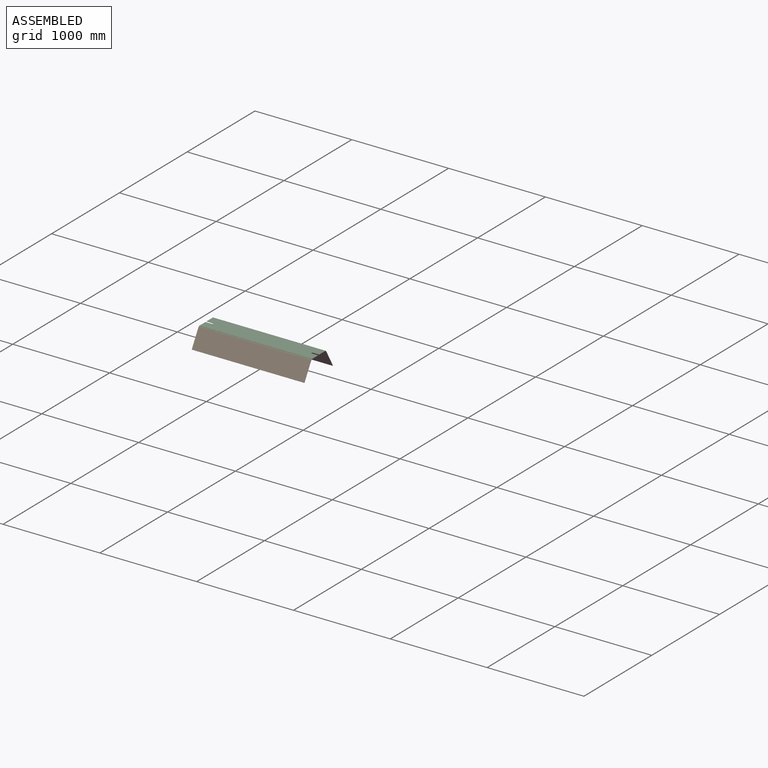
[diagram: assembled view]
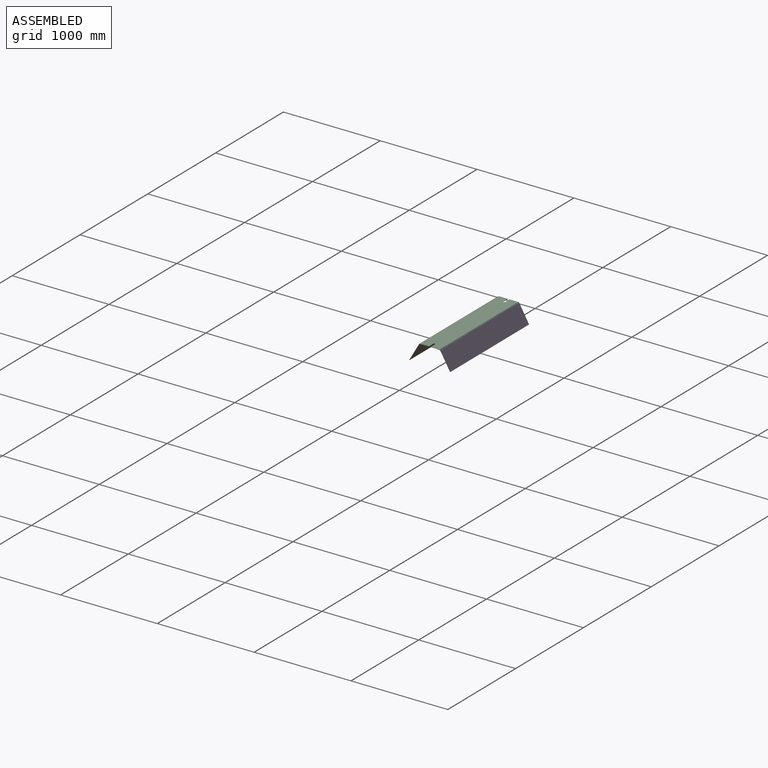
[diagram: assembled view, second angle]
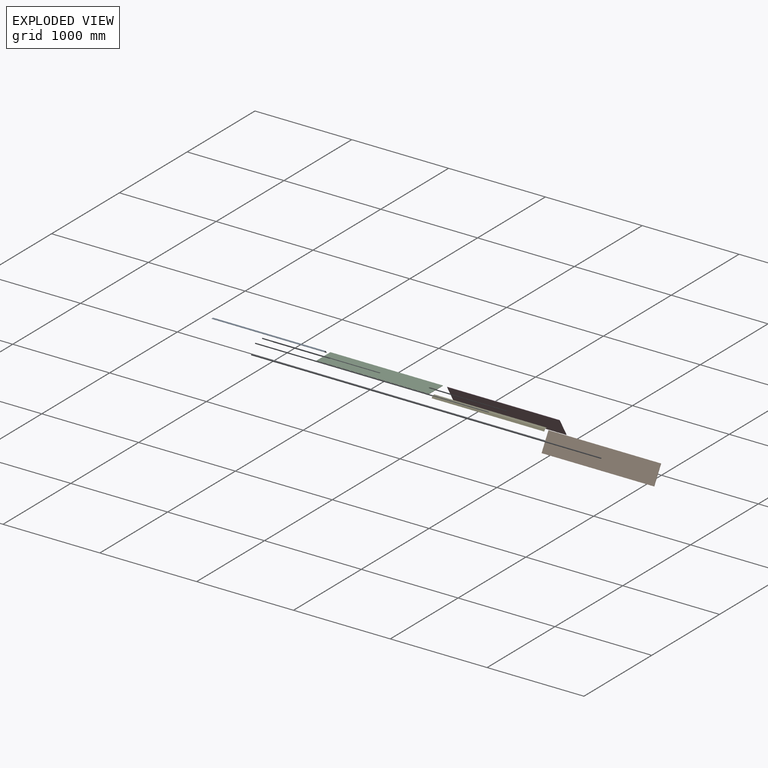
[diagram: exploded view]
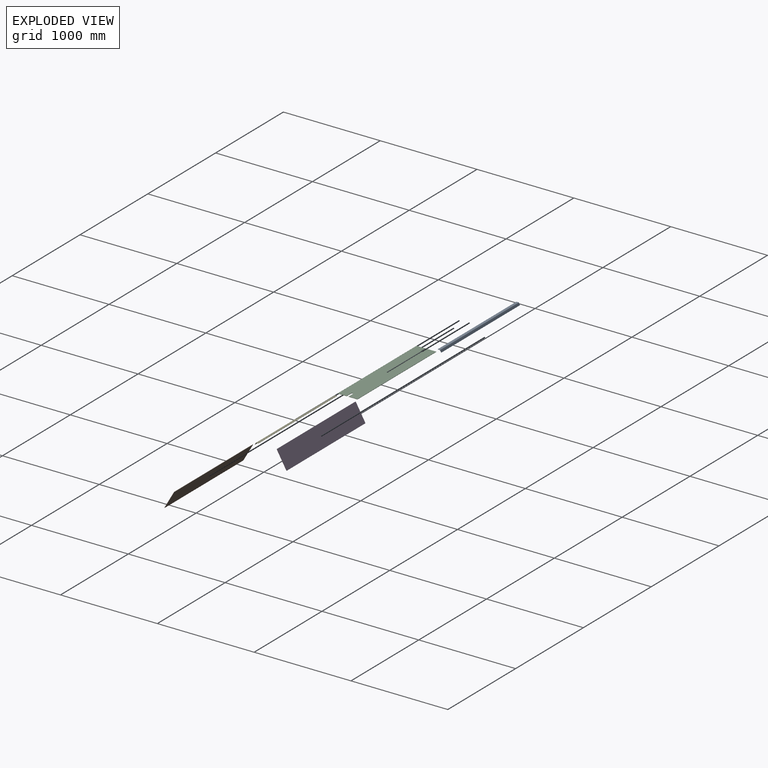
[diagram: exploded view, second angle]
ASSEMBLY  parts=5 mates=4
PART A: 10 faces, bbox 1162.1x38.1x22.8 mm
  f0: plane 1162.05x18.82mm, normal (0,0.87,0.5), area 25255.8mm2, adj f1,f7,f8,f9
  f1: cylinder r=6.35mm len=1162.05mm, axis (1,0,0), area 7727.3mm2, adj f0,f2,f8,f9
  f2: plane 1162.05x21.73mm, normal (0,0,1), area 25255.8mm2, adj f1,f3,f8,f9
  f3: plane 1162.05x1.59mm, normal (0,-1,0), area 1844.8mm2, adj f2,f4,f8,f9
  f4: plane 1162.05x21.73mm, normal (0,0,-1), area 25255.8mm2, adj f3,f5,f8,f9
  f5: cylinder r=4.76mm len=1162.05mm, axis (1,0,0), area 5795.5mm2, adj f4,f6,f8,f9
  f6: plane 1162.05x18.82mm, normal (0,-0.87,-0.5), area 25255.8mm2, adj f5,f7,f8,f9
  f7: plane 1162.05x1.38mm, normal (0,0.5,-0.87), area 1844.8mm2, adj f0,f6,f8,f9
  f8: plane 38.1x22.79mm, normal (-1,0,0), area 78.2mm2, adj f0,f1,f2,f3,f4,f5,f6,f7
  f9: plane 38.1x22.79mm, normal (1,0,0), area 78.2mm2, adj f0,f1,f2,f3,f4,f5,f6,f7
PART B: 6 faces, bbox 1162.1x104.2x177.5 mm
  f0: plane 1162.05x2.6mm, normal (0,-0.5,-0.87), area 3482.9mm2, adj f1,f3,f4,f5
  f1: plane 1162.05x175.98mm, normal (0,0.87,-0.5), area 236128.6mm2, adj f0,f2,f4,f5
  f2: plane 1162.05x2.6mm, normal (0,0.5,0.87), area 3482.9mm2, adj f1,f3,f4,f5
  f3: plane 1162.05x175.98mm, normal (0,-0.87,0.5), area 236128.6mm2, adj f0,f2,f4,f5
  f4: plane 177.48x104.2mm, normal (-1,0,0), area 609mm2, adj f0,f1,f2,f3
  f5: plane 177.48x104.2mm, normal (1,0,0), area 609mm2, adj f0,f1,f2,f3
PART C: 14 faces, bbox 1162.1x203.2x3 mm
  f0: plane 92.08x3mm, normal (-1,0,0), area 276mm2, adj f1,f3,f4,f13
  f1: plane 1162.05x203.2mm, normal (0,0,1), area 233424.2mm2, adj f0,f2,f4,f5,f6,f7,f8,f9
  f2: plane 92.08x3mm, normal (1,0,0), area 276mm2, adj f1,f3,f4,f10
  f3: plane 1162.05x203.2mm, normal (0,0,-1), area 233424.2mm2, adj f0,f2,f4,f5,f6,f7,f8,f9
  f4: plane 1162.05x3mm, normal (0,-1,0), area 3482.9mm2, adj f0,f1,f2,f3
  f5: plane 1162.05x3mm, normal (0,1,0), area 3482.9mm2, adj f1,f3,f6,f7
  f6: plane 92.08x3mm, normal (-1,0,0), area 276mm2, adj f1,f3,f5,f12
  f7: plane 92.08x3mm, normal (1,0,0), area 276mm2, adj f1,f3,f5,f8
  f8: plane 63.5x3mm, normal (0,-1,0), area 190.3mm2, adj f1,f3,f7,f9
  f9: cylinder r=9.53mm len=19.05mm, axis (0,0,1), area 89.7mm2, adj f1,f3,f8,f10
  f10: plane 63.5x3mm, normal (0,1,0), area 190.3mm2, adj f1,f2,f3,f9
  f11: cylinder r=9.53mm len=19.05mm, axis (0,0,1), area 89.7mm2, adj f1,f3,f12,f13
  f12: plane 63.5x3mm, normal (0,-1,0), area 190.3mm2, adj f1,f3,f6,f11
  f13: plane 63.5x3mm, normal (0,1,0), area 190.3mm2, adj f0,f1,f3,f11
PART D: 6 faces, bbox 1162.1x104.2x177.5 mm
  f0: plane 1162.05x175.98mm, normal (0,-0.87,-0.5), area 236128.6mm2, adj f1,f3,f4,f5
  f1: plane 1162.05x2.6mm, normal (0,0.5,-0.87), area 3482.9mm2, adj f0,f2,f4,f5
  f2: plane 1162.05x175.98mm, normal (0,0.87,0.5), area 236128.6mm2, adj f1,f3,f4,f5
  f3: plane 1162.05x2.6mm, normal (0,-0.5,0.87), area 3482.9mm2, adj f0,f2,f4,f5
  f4: plane 177.48x104.2mm, normal (-1,0,0), area 609mm2, adj f0,f1,f2,f3
  f5: plane 177.48x104.2mm, normal (1,0,0), area 609mm2, adj f0,f1,f2,f3
PART E: 10 faces, bbox 1162.1x38.1x22.8 mm
  f0: plane 1162.05x1.38mm, normal (0,-0.5,-0.87), area 1844.8mm2, adj f1,f5,f6,f7
  f1: plane 1162.05x18.82mm, normal (0,0.87,-0.5), area 25255.8mm2, adj f0,f6,f7,f9
  f2: plane 1162.05x21.73mm, normal (0,0,-1), area 25255.8mm2, adj f3,f6,f7,f9
  f3: plane 1162.05x1.59mm, normal (0,1,0), area 1844.8mm2, adj f2,f4,f6,f7
  f4: plane 1162.05x21.73mm, normal (0,0,1), area 25255.8mm2, adj f3,f6,f7,f8
  f5: plane 1162.05x18.82mm, normal (0,-0.87,0.5), area 25255.8mm2, adj f0,f6,f7,f8
  f6: plane 38.1x22.79mm, normal (-1,0,0), area 78.2mm2, adj f0,f1,f2,f3,f4,f5,f8,f9
  f7: plane 38.1x22.79mm, normal (1,0,0), area 78.2mm2, adj f0,f1,f2,f3,f4,f5,f8,f9
  f8: cylinder r=6.35mm len=1162.05mm, axis (-1,0,0), area 7727.3mm2, adj f4,f5,f6,f7
  f9: cylinder r=4.76mm len=1162.05mm, axis (-1,0,0), area 5795.5mm2, adj f1,f2,f6,f7
PLACE A t=(-510.48,73.27,152.66)mm
PLACE B t=(-510.48,-253.27,-3.7)mm
PLACE C t=(-510.48,-43.32,175.46)mm
PLACE D t=(-510.48,165.38,-3.7)mm
PLACE E t=(-510.48,-161.16,152.66)mm
MATE parallel D.f5 <-> A.f9  axis (1,0,0) through (-510.48,63.78,172.28)mm
MATE parallel C.f2 <-> E.f7  axis (1,0,0) through (-510.48,-144.92,175.46)mm
MATE parallel B.f5 <-> E.f7  axis (1,0,0) through (-510.48,-151.67,172.28)mm
MATE parallel C.f7 <-> A.f9  axis (1,0,0) through (-510.48,58.28,175.46)mm
